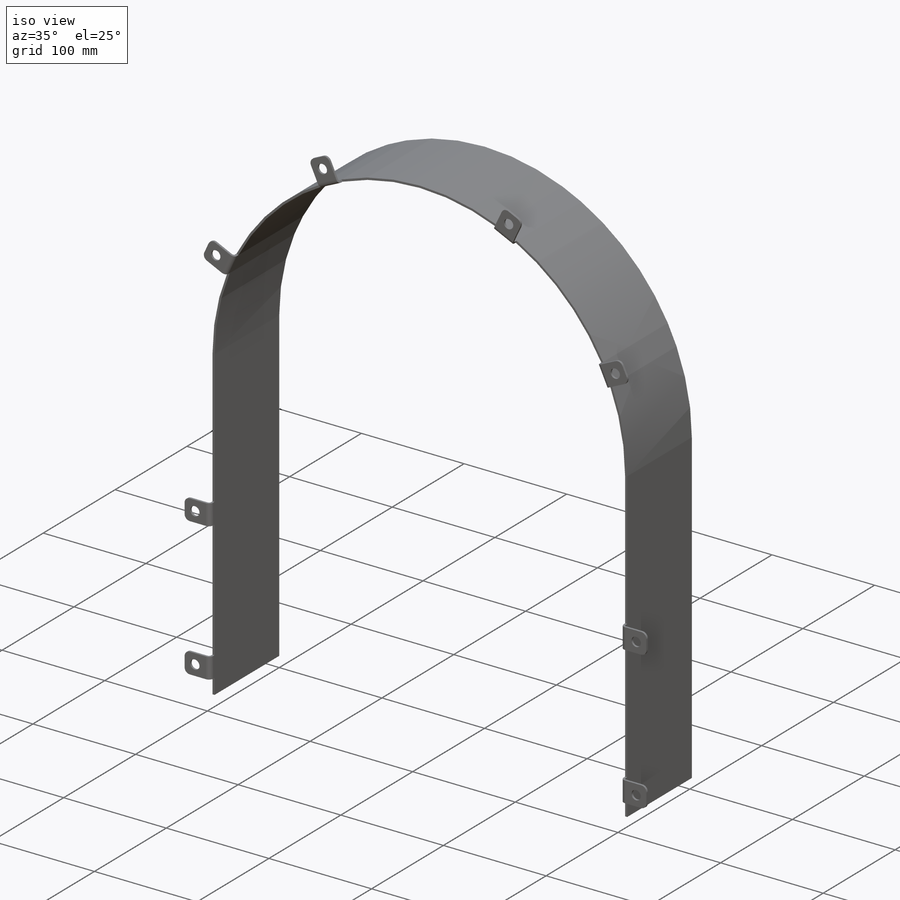
[diagram: iso view]
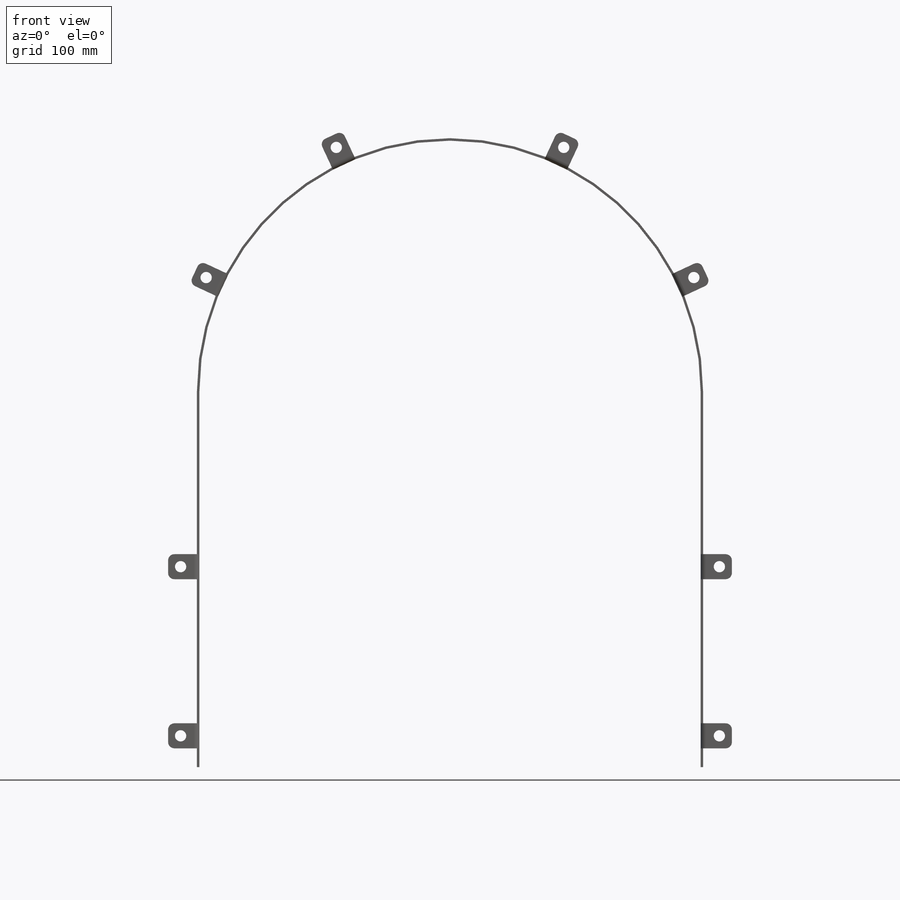
[diagram: front view]
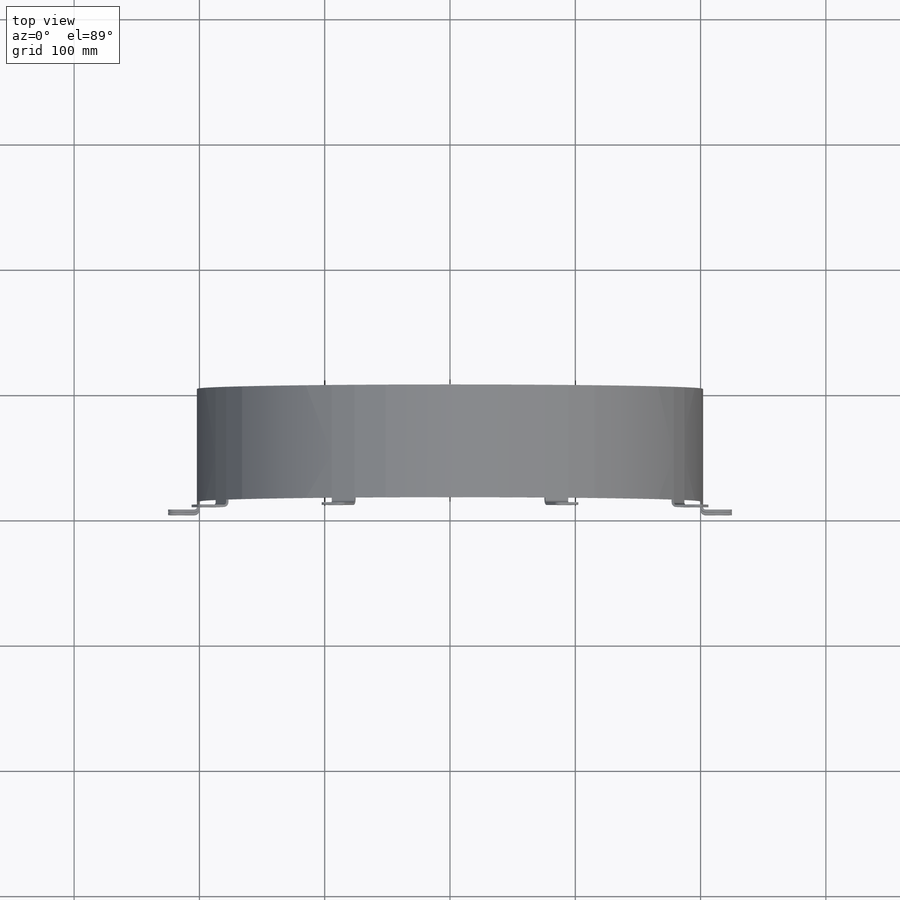
[diagram: top view]
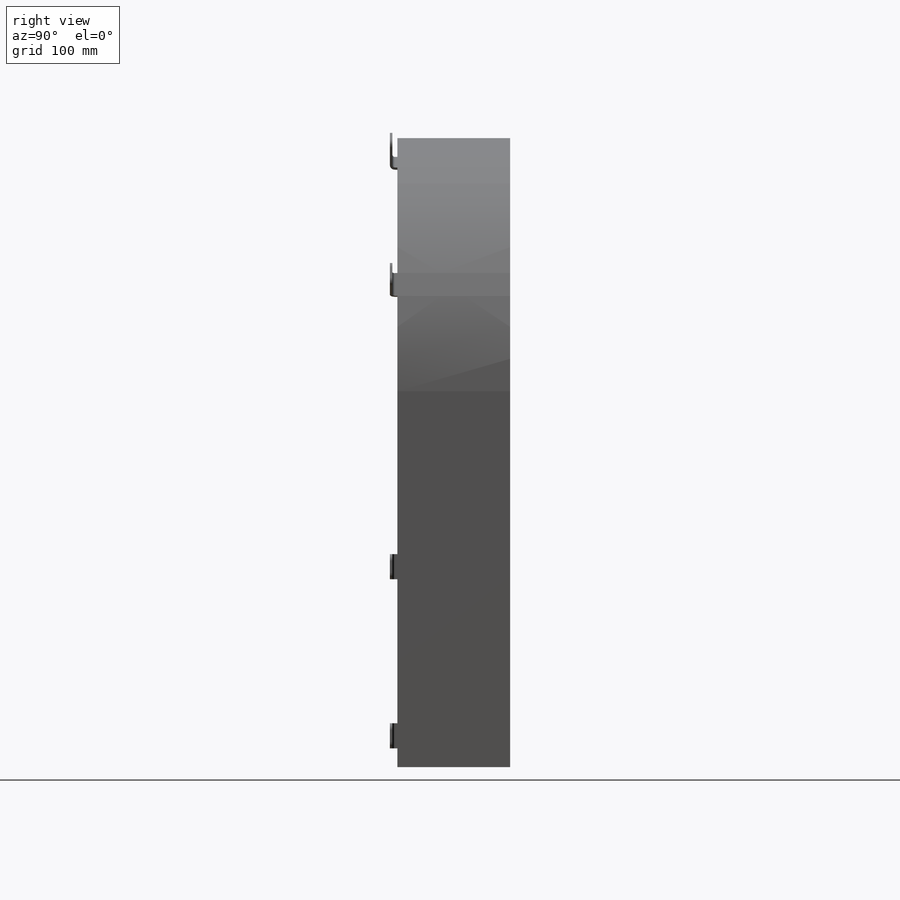
[diagram: right view]
SOLIDWORKS PART (.sldprt)
format: sldprt  version: not decoded by parser v0  size: 980,992 bytes
history: native  units: mm
features: fillet x21, sketch x19, plane x3, sheet_metal_op x3, extrude x2, material x1, cut_extrude x1 + 3 further entries (+9 scaffold rows collapsed; 3 parser-record rows omitted)
feature tree (65):
  scaffold x9  (default folders/planes/origin — collapsed)
  material  "1.0037 (S235JR)"
  plane  "Ebene vorne"
  plane  "Ebene oben"
  plane  "Ebene rechts"
  sketch  "Skizze1"  dims[c1.D4=400.0mm c1.D1=~62.684612mm c2.D1=25.0deg c2.D2=~125.369224mm c3.D2=65.0deg c3.D3=20.0mm c3.D6=300.0mm c3.D5=2.0mm]
  extrude  "Aufsatz-Linear austragen1"  Depth=90mm
  sketch  "Skizze2"  dims[D1=20.0mm D2=15.0mm D3=150.0mm]
  extrude  "Aufsatz-Linear austragen5"  Depth=2mm
  fillet  "Verrundung1"  Radius=2mm Verrundung10=0
  fillet  "Biegung-Rundung2"  Radius=2mm
  fillet  "Biegung-Rundung3"  Radius=2mm
  fillet  "Biegung-Rundung4"  Radius=200mm
  fillet  "Biegung-Rundung5"  Radius=2mm
  fillet  "Biegung-Rundung6"  Radius=2mm
  fillet  "Biegung-Rundung7"  Radius=200mm
  fillet  "Biegung-Rundung8"  Radius=2mm
  fillet  "Biegung-Rundung9"  Radius=2mm
  fillet  "Biegung-Rundung10"  Radius=200mm
  fillet  "Biegung-Rundung11"  Radius=2mm
  fillet  "Biegung-Rundung12"  Radius=2mm
  fillet  "Biegung-Rundung13"  Radius=200mm
  sketch  "Skizze47"
  sketch  "Skizze48"
  sketch  "Skizze49"
  sketch  "Skizze50"
  sketch  "Skizze51"
  sketch  "Skizze52"
  sketch  "Skizze53"
  sketch  "Skizze54"
  fillet  "Kantenbiegung1"  Radius=2mm
  fillet  "Kantenbiegung2"  Radius=2mm
  fillet  "Kantenbiegung3"  Radius=2mm
  fillet  "Kantenbiegung4"  Radius=2mm
  fillet  "Kantenbiegung5"  Radius=2mm
  fillet  "Kantenbiegung6"  Radius=2mm
  fillet  "Kantenbiegung7"  Radius=2mm
  fillet  "Kantenbiegung8"  Radius=2mm Verrundung11=0
  sketch  "Skizze57"  dims[D1=9.0mm D2=10.0mm]
  cut_extrude  "Schnitt-Linear austragen1"  [1 undecoded]
  sketch  "Biegung-Linien7"
  sketch  "Rahmen7"
  sheet_metal_op  "Blech(7)"
  "Abwicklung(7)"
  sketch  "Biegung-Linien10"
  sketch  "Rahmen10"
  parser-record x3  (decoder bookkeeping rows leaked as tree rows — omitted from the tree; the rows remain in map.json)
  sheet_metal_op  "Blech(8)"
  "Abwicklung(7)"
  sketch  "Biegung-Linien11"
  sketch  "Rahmen11"
  sheet_metal_op  "Blech(9)"
  "Abwicklung(7)"
  sketch  "Biegung-Linien12"
  sketch  "Rahmen12"
decode coverage: 26 of 46 modeling features carry decoded parameters; 3 rows unclassified (native names shown)
note: ~ marks probable driven/reference dimensions
note: 1 parameter value undecoded
note: suppression state not decoded; provenance and decode notes live in map.json
